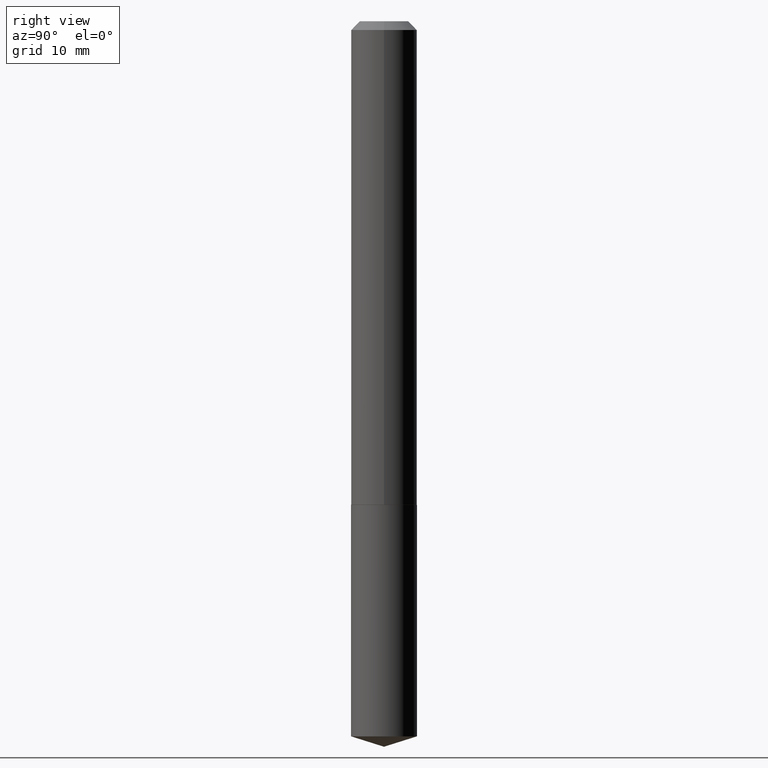
[diagram: clean part render]
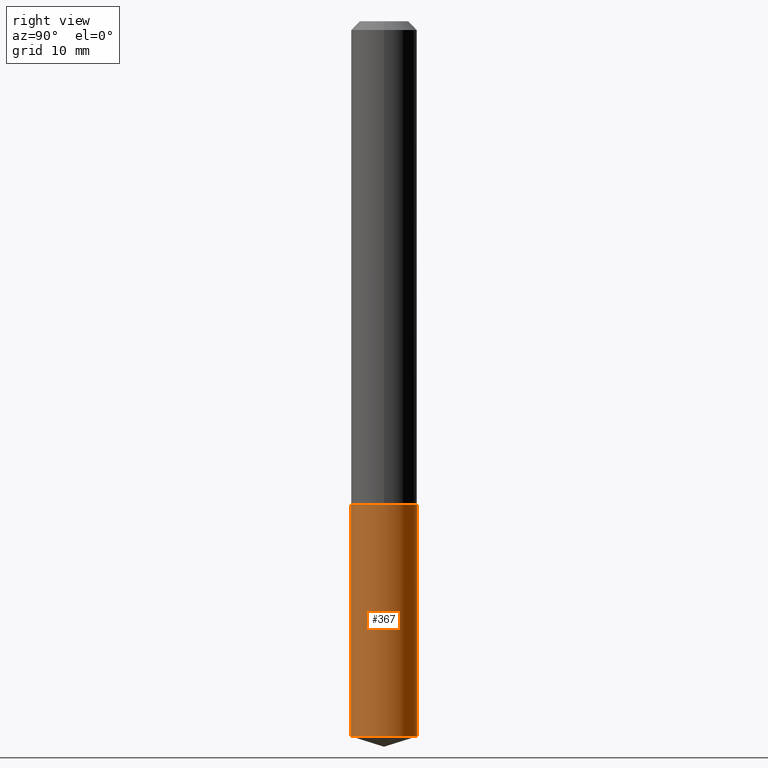
[diagram: same view with one face highlighted and labeled with its STEP entity id]
A machine part, right view. The second image highlights one B-rep face of the part: STEP entity #367.
In plain terms, the highlighted cylindrical surface (edge-blend (fillet) strip) has radius 2.9997 mm, axis along (-0, 0, 1).
Its self-contained STEP definition (entity closure, byte-faithful):
#7 = CIRCLE ( 'NONE', #189, 0.1180999999999999966 ) ;
#10 = CARTESIAN_POINT ( 'NONE',  ( -8.246878922347056641E-16, -0.1181000000000060474, -1.732199999999999074 ) ) ;
#13 = AXIS2_PLACEMENT_3D ( 'NONE', #268, #383, #202 ) ;
#18 = LINE ( 'NONE', #112, #36 ) ;
#19 = VERTEX_POINT ( 'NONE', #307 ) ;
#32 = EDGE_CURVE ( 'NONE', #324, #19, #300, .T. ) ;
#36 = VECTOR ( 'NONE', #136, 39.37007874015748143 ) ;
#41 = CARTESIAN_POINT ( 'NONE',  ( 6.263784958690239673E-29, -8.941479947317758839E-15, -2.561163213033392783 ) ) ;
#52 = CIRCLE ( 'NONE', #363, 0.1180999999999999966 ) ;
#56 = CYLINDRICAL_SURFACE ( 'NONE', #13, 0.1180999999999999966 ) ;
#66 = EDGE_LOOP ( 'NONE', ( #200, #180, #326, #174 ) ) ;
#103 = EDGE_CURVE ( 'NONE', #360, #324, #7, .T. ) ;
#108 = CARTESIAN_POINT ( 'NONE',  ( 8.391509709327409115E-16, 0.1180999999999910316, -2.561163213033393227 ) ) ;
#112 = CARTESIAN_POINT ( 'NONE',  ( -8.246878922347056641E-16, -0.1181000000000060474, -1.732199999999999074 ) ) ;
#136 = DIRECTION ( 'NONE',  ( -2.446120480058821547E-29, 3.490548104765055762E-15, 1.000000000000000000 ) ) ;
#140 = CARTESIAN_POINT ( 'NONE',  ( -8.246878922346854496E-16, -0.1181000000000089617, -2.561163213033392339 ) ) ;
#152 = CARTESIAN_POINT ( 'NONE',  ( 8.391509709327204997E-16, 0.1180999999999939598, -1.732200000000000184 ) ) ;
#155 = DIRECTION ( 'NONE',  ( -2.446120480058821547E-29, 3.490548104765055762E-15, 1.000000000000000000 ) ) ;
#167 = FACE_OUTER_BOUND ( 'NONE', #66, .T. ) ;
#174 = ORIENTED_EDGE ( 'NONE', *, *, #242, .F. ) ;
#180 = ORIENTED_EDGE ( 'NONE', *, *, #32, .T. ) ;
#189 = AXIS2_PLACEMENT_3D ( 'NONE', #41, #312, #366 ) ;
#198 = VERTEX_POINT ( 'NONE', #10 ) ;
#200 = ORIENTED_EDGE ( 'NONE', *, *, #103, .T. ) ;
#202 = DIRECTION ( 'NONE',  ( -6.982962677686265922E-15, -1.000000000000000000, 4.626330217890369336E-15 ) ) ;
#223 = DIRECTION ( 'NONE',  ( -6.982962677686265922E-15, -1.000000000000000000, 4.626330217890369336E-15 ) ) ;
#242 = EDGE_CURVE ( 'NONE', #360, #198, #18, .T. ) ;
#251 = CARTESIAN_POINT ( 'NONE',  ( 4.236041066073892487E-29, -6.047943975144095988E-15, -1.732199999999999518 ) ) ;
#265 = VECTOR ( 'NONE', #155, 39.37007874015748143 ) ;
#268 = CARTESIAN_POINT ( 'NONE',  ( 4.236041066073892487E-29, -6.047943975144095988E-15, -1.732199999999999518 ) ) ;
#286 = EDGE_CURVE ( 'NONE', #198, #19, #52, .T. ) ;
#299 = DIRECTION ( 'NONE',  ( -2.446120480058821266E-29, 3.490548104765055762E-15, 1.000000000000000000 ) ) ;
#300 = LINE ( 'NONE', #152, #265 ) ;
#307 = CARTESIAN_POINT ( 'NONE',  ( 8.391509709327409115E-16, 0.1180999999999939321, -1.732200000000000184 ) ) ;
#312 = DIRECTION ( 'NONE',  ( -2.446120480058821266E-29, 3.490548104765055762E-15, 1.000000000000000000 ) ) ;
#324 = VERTEX_POINT ( 'NONE', #108 ) ;
#326 = ORIENTED_EDGE ( 'NONE', *, *, #286, .F. ) ;
#360 = VERTEX_POINT ( 'NONE', #140 ) ;
#363 = AXIS2_PLACEMENT_3D ( 'NONE', #251, #299, #223 ) ;
#366 = DIRECTION ( 'NONE',  ( -6.982962677686265922E-15, -1.000000000000000000, 4.626330217890369336E-15 ) ) ;
#367 = ADVANCED_FACE ( 'NONE', ( #167 ), #56, .T. ) ;
#383 = DIRECTION ( 'NONE',  ( -2.446120480058821266E-29, 3.490548104765055762E-15, 1.000000000000000000 ) ) ;